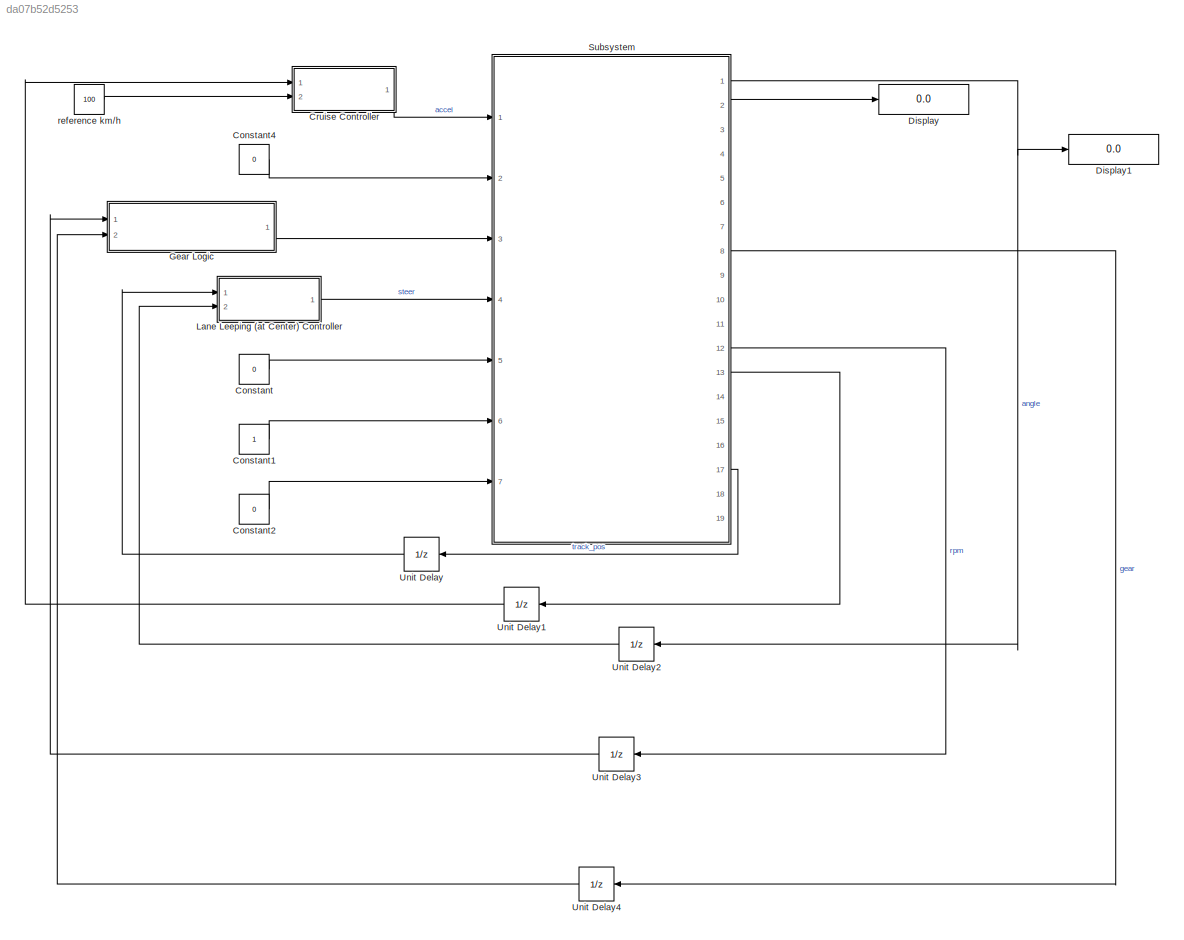
MODEL slx_da07b52d5253
KIND model
CONFIG AbsTol = auto
CONFIG EnableMultiTasking = on
CONFIG FixedStep = T
CONFIG MaxStep = auto
CONFIG MinStep = auto
CONFIG RelTol = 1e-3
CONFIG SampleTimeConstraint = Unconstrained
CONFIG Solver = ode1
CONFIG SolverName = ode1
CONFIG StartTime = 0.0
CONFIG StopTime = inf
BLOCK [Constant] Constant
  Value = 0
BLOCK [Constant] Constant1
BLOCK [Constant] Constant2
  Value = 0
BLOCK [Constant] Constant4
  Value = 0
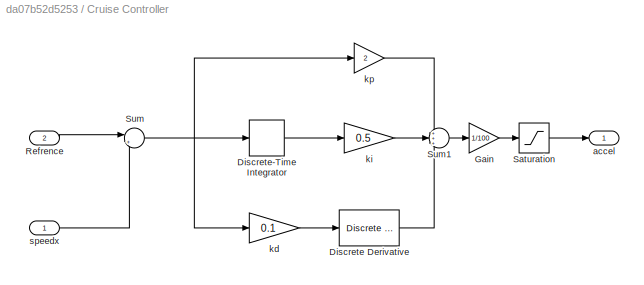
BLOCK [SubSystem] Cruise Controller
  Ports = [2, 1]
  Priority = 0
  RequestExecContextInheritance = off
BLOCK [Reference] Cruise Controller/Discrete Derivative  REF=simulink/Discrete/Discrete Derivative
  Ports = [1, 1]
  SourceBlock = simulink/Discrete/Discrete Derivative
  SourceProductBaseCode = SL
  SourceProductName = Simulink
  SourceType = Discrete Derivative
BLOCK [DiscreteIntegrator] Cruise Controller/Discrete-Time Integrator
  ICPrevOutput = DiscIntNeverNeededParam
  ICPrevScaledInput = DiscIntNeverNeededParam
  InitialConditionSetting = Auto
  Ports = [1, 1]
  SampleTime = -1
BLOCK [Gain] Cruise Controller/Gain
  Gain = 1/100
  OutDataTypeStr = Inherit: Inherit via internal rule
  ParamDataTypeStr = Inherit: Inherit via internal rule
  SaturateOnIntegerOverflow = off
BLOCK [Inport] Cruise Controller/Refrence 
  IconDisplay = Port number
  Port = 2
BLOCK [Saturate] Cruise Controller/Saturation
  InputPortMap = u0
  LowerLimit = -1
  Ports = [1, 1]
  UpperLimit = 1
BLOCK [Sum] Cruise Controller/Sum
  IconShape = round
  InputSameDT = off
  Inputs = |+-
  OutDataTypeStr = Inherit: Inherit via internal rule
  Ports = [2, 1]
  SaturateOnIntegerOverflow = off
BLOCK [Sum] Cruise Controller/Sum1
  IconShape = round
  InputSameDT = off
  Inputs = +++
  OutDataTypeStr = Inherit: Inherit via internal rule
  Ports = [3, 1]
  SaturateOnIntegerOverflow = off
BLOCK [Outport] Cruise Controller/accel
  IconDisplay = Port number
BLOCK [Gain] Cruise Controller/kd 
  Gain = 0.1
  OutDataTypeStr = Inherit: Inherit via internal rule
  ParamDataTypeStr = Inherit: Inherit via internal rule
  SaturateOnIntegerOverflow = off
BLOCK [Gain] Cruise Controller/ki 
  Gain = 0.5
  OutDataTypeStr = Inherit: Inherit via internal rule
  ParamDataTypeStr = Inherit: Inherit via internal rule
  SaturateOnIntegerOverflow = off
BLOCK [Gain] Cruise Controller/kp
  Gain = 2
  OutDataTypeStr = Inherit: Inherit via internal rule
  ParamDataTypeStr = Inherit: Inherit via internal rule
  SaturateOnIntegerOverflow = off
BLOCK [Inport] Cruise Controller/speedx 
  IconDisplay = Port number
BLOCK [Display] Display
  Decimation = 1
  Ports = [1]
BLOCK [Display] Display1
  Decimation = 1
  Ports = [1]
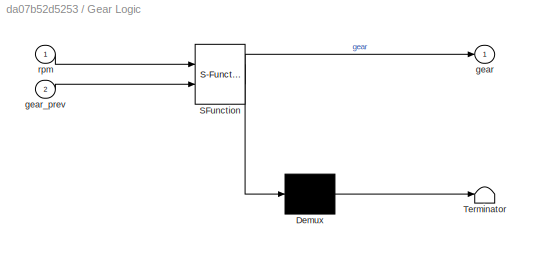
BLOCK [SubSystem] Gear Logic
  ErrorFcn = Stateflow.Translate.translate
  PermitHierarchicalResolution = ExplicitOnly
  Ports = [2, 1]
  RequestExecContextInheritance = off
  SFBlockType = MATLAB Function
  TreatAsAtomicUnit = on
BLOCK [Demux] Gear Logic/ Demux 
  Outputs = 1
  Ports = [1, 1]
BLOCK [S-Function] Gear Logic/ SFunction 
  EnableBusSupport = on
  FunctionName = sf_sfun
  PortCounts = [2 2]
  Ports = [2, 2]
  SFcnIsStateOwnerBlock = off
  SFunctionDeploymentMode = off
  Tag = Stateflow S-Function TestModel 2
BLOCK [Terminator] Gear Logic/ Terminator 
BLOCK [Outport] Gear Logic/gear
  IconDisplay = Port number
BLOCK [Inport] Gear Logic/gear_prev
  IconDisplay = Port number
  Port = 2
BLOCK [Inport] Gear Logic/rpm
  IconDisplay = Port number
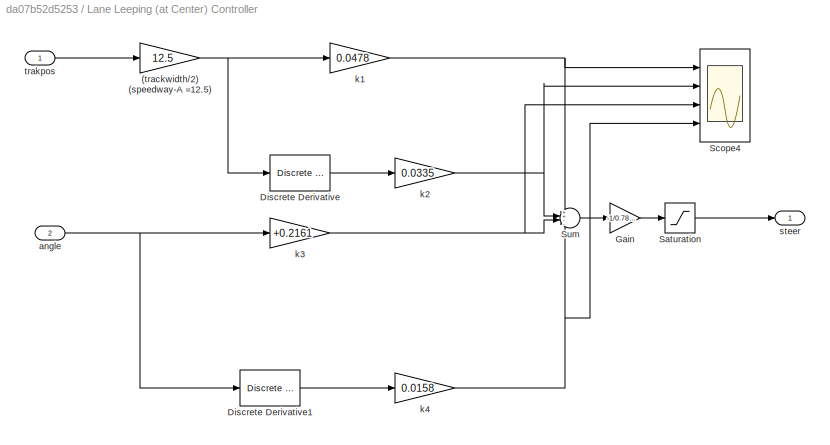
BLOCK [SubSystem] Lane Leeping (at Center) Controller
  Ports = [2, 1]
  Priority = 0
  RequestExecContextInheritance = off
BLOCK [Gain] Lane Leeping (at Center) Controller/(trackwidth//2) (speedway-A =12.5)
  Gain = 12.5
  OutDataTypeStr = Inherit: Inherit via internal rule
  ParamDataTypeStr = Inherit: Inherit via internal rule
  SaturateOnIntegerOverflow = off
BLOCK [Reference] Lane Leeping (at Center) Controller/Discrete Derivative  REF=simulink/Discrete/Discrete Derivative
  Ports = [1, 1]
  SourceBlock = simulink/Discrete/Discrete Derivative
  SourceProductBaseCode = SL
  SourceProductName = Simulink
  SourceType = Discrete Derivative
BLOCK [Reference] Lane Leeping (at Center) Controller/Discrete Derivative1  REF=simulink/Discrete/Discrete Derivative
  Ports = [1, 1]
  SourceBlock = simulink/Discrete/Discrete Derivative
  SourceProductBaseCode = SL
  SourceProductName = Simulink
  SourceType = Discrete Derivative
BLOCK [Gain] Lane Leeping (at Center) Controller/Gain
  Gain = -1/0.785398
  OutDataTypeStr = Inherit: Inherit via internal rule
  ParamDataTypeStr = Inherit: Inherit via internal rule
  SaturateOnIntegerOverflow = off
BLOCK [Saturate] Lane Leeping (at Center) Controller/Saturation
  InputPortMap = u0
  LowerLimit = -1
  Ports = [1, 1]
  UpperLimit = 1
BLOCK [Scope] Lane Leeping (at Center) Controller/Scope4
  Floating = off
  NumInputPorts = 4
  Ports = [4]
  ScopeSpecificationString = Simulink.scopes.TimeScopeBlockCfg('CurrentConfiguration', extmgr.ConfigurationSet(extmgr.Configuration('Core','General UI',true),extmgr.Configuration('Core','Source UI',true),extmgr.Configuration('Sources','WiredSimulink',true,'DataLoggingVariableName','ScopeData4'),extmgr.Configuration('Visuals','Time Domain',true,'SerializedDisplays',{struct('MinYLimReal','-0.02889','MaxYLimReal','0.22569','YLab...<+3430ch>
BLOCK [Sum] Lane Leeping (at Center) Controller/Sum
  IconShape = round
  InputSameDT = off
  Inputs = ++--
  OutDataTypeStr = Inherit: Inherit via internal rule
  Ports = [4, 1]
  SaturateOnIntegerOverflow = off
BLOCK [Inport] Lane Leeping (at Center) Controller/angle
  IconDisplay = Port number
  Port = 2
BLOCK [Gain] Lane Leeping (at Center) Controller/k1
  Gain = 0.0478
  OutDataTypeStr = Inherit: Inherit via internal rule
  ParamDataTypeStr = Inherit: Inherit via internal rule
  SaturateOnIntegerOverflow = off
BLOCK [Gain] Lane Leeping (at Center) Controller/k2
  Gain = 0.0335
  OutDataTypeStr = Inherit: Inherit via internal rule
  ParamDataTypeStr = Inherit: Inherit via internal rule
  SaturateOnIntegerOverflow = off
BLOCK [Gain] Lane Leeping (at Center) Controller/k3
  Gain = +0.2161
  OutDataTypeStr = Inherit: Inherit via internal rule
  ParamDataTypeStr = Inherit: Inherit via internal rule
  SaturateOnIntegerOverflow = off
BLOCK [Gain] Lane Leeping (at Center) Controller/k4
  Gain = 0.0158
  OutDataTypeStr = Inherit: Inherit via internal rule
  ParamDataTypeStr = Inherit: Inherit via internal rule
  SaturateOnIntegerOverflow = off
BLOCK [Outport] Lane Leeping (at Center) Controller/steer
  IconDisplay = Port number
BLOCK [Inport] Lane Leeping (at Center) Controller/trakpos
  IconDisplay = Port number
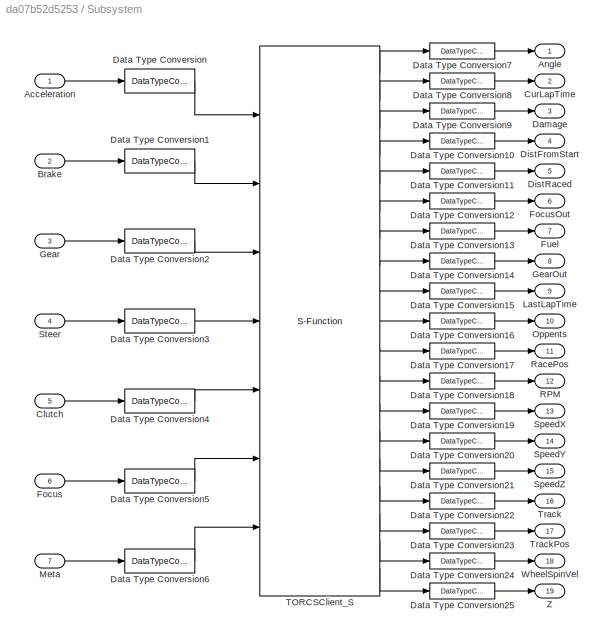
BLOCK [SubSystem] Subsystem
  Ports = [7, 19]
  Priority = 1
  RequestExecContextInheritance = off
BLOCK [Inport] Subsystem/Acceleration
  IconDisplay = Port number
BLOCK [Outport] Subsystem/Angle
  IconDisplay = Port number
BLOCK [Inport] Subsystem/Brake
  IconDisplay = Port number
  Port = 2
BLOCK [Inport] Subsystem/Clutch
  IconDisplay = Port number
  Port = 5
BLOCK [Outport] Subsystem/CurLapTime
  IconDisplay = Port number
  Port = 2
BLOCK [Outport] Subsystem/Damage
  IconDisplay = Port number
  Port = 3
BLOCK [DataTypeConversion] Subsystem/Data Type Conversion
  OutDataTypeStr = single
  RndMeth = Floor
  SaturateOnIntegerOverflow = off
BLOCK [DataTypeConversion] Subsystem/Data Type Conversion1
  OutDataTypeStr = single
  RndMeth = Floor
  SaturateOnIntegerOverflow = off
BLOCK [DataTypeConversion] Subsystem/Data Type Conversion10
  OutDataTypeStr = double
  RndMeth = Floor
  SaturateOnIntegerOverflow = off
BLOCK [DataTypeConversion] Subsystem/Data Type Conversion11
  OutDataTypeStr = double
  RndMeth = Floor
  SaturateOnIntegerOverflow = off
BLOCK [DataTypeConversion] Subsystem/Data Type Conversion12
  OutDataTypeStr = double
  RndMeth = Floor
  SaturateOnIntegerOverflow = off
BLOCK [DataTypeConversion] Subsystem/Data Type Conversion13
  OutDataTypeStr = double
  RndMeth = Floor
  SaturateOnIntegerOverflow = off
BLOCK [DataTypeConversion] Subsystem/Data Type Conversion14
  OutDataTypeStr = double
  RndMeth = Floor
  SaturateOnIntegerOverflow = off
BLOCK [DataTypeConversion] Subsystem/Data Type Conversion15
  OutDataTypeStr = double
  RndMeth = Floor
  SaturateOnIntegerOverflow = off
BLOCK [DataTypeConversion] Subsystem/Data Type Conversion16
  OutDataTypeStr = double
  RndMeth = Floor
  SaturateOnIntegerOverflow = off
BLOCK [DataTypeConversion] Subsystem/Data Type Conversion17
  OutDataTypeStr = double
  RndMeth = Floor
  SaturateOnIntegerOverflow = off
BLOCK [DataTypeConversion] Subsystem/Data Type Conversion18
  OutDataTypeStr = double
  RndMeth = Floor
  SaturateOnIntegerOverflow = off
BLOCK [DataTypeConversion] Subsystem/Data Type Conversion19
  OutDataTypeStr = double
  RndMeth = Floor
  SaturateOnIntegerOverflow = off
BLOCK [DataTypeConversion] Subsystem/Data Type Conversion2
  OutDataTypeStr = int32
  RndMeth = Floor
  SaturateOnIntegerOverflow = off
BLOCK [DataTypeConversion] Subsystem/Data Type Conversion20
  OutDataTypeStr = double
  RndMeth = Floor
  SaturateOnIntegerOverflow = off
BLOCK [DataTypeConversion] Subsystem/Data Type Conversion21
  OutDataTypeStr = double
  RndMeth = Floor
  SaturateOnIntegerOverflow = off
BLOCK [DataTypeConversion] Subsystem/Data Type Conversion22
  OutDataTypeStr = double
  RndMeth = Floor
  SaturateOnIntegerOverflow = off
BLOCK [DataTypeConversion] Subsystem/Data Type Conversion23
  OutDataTypeStr = double
  RndMeth = Floor
  SaturateOnIntegerOverflow = off
BLOCK [DataTypeConversion] Subsystem/Data Type Conversion24
  OutDataTypeStr = double
  RndMeth = Floor
  SaturateOnIntegerOverflow = off
BLOCK [DataTypeConversion] Subsystem/Data Type Conversion25
  OutDataTypeStr = double
  RndMeth = Floor
  SaturateOnIntegerOverflow = off
BLOCK [DataTypeConversion] Subsystem/Data Type Conversion3
  OutDataTypeStr = single
  RndMeth = Floor
  SaturateOnIntegerOverflow = off
BLOCK [DataTypeConversion] Subsystem/Data Type Conversion4
  OutDataTypeStr = single
  RndMeth = Floor
  SaturateOnIntegerOverflow = off
BLOCK [DataTypeConversion] Subsystem/Data Type Conversion5
  OutDataTypeStr = int32
  RndMeth = Floor
  SaturateOnIntegerOverflow = off
BLOCK [DataTypeConversion] Subsystem/Data Type Conversion6
  OutDataTypeStr = int32
  RndMeth = Floor
  SaturateOnIntegerOverflow = off
BLOCK [DataTypeConversion] Subsystem/Data Type Conversion7
  OutDataTypeStr = double
  RndMeth = Floor
  SaturateOnIntegerOverflow = off
BLOCK [DataTypeConversion] Subsystem/Data Type Conversion8
  OutDataTypeStr = double
  RndMeth = Floor
  SaturateOnIntegerOverflow = off
BLOCK [DataTypeConversion] Subsystem/Data Type Conversion9
  OutDataTypeStr = double
  RndMeth = Floor
  SaturateOnIntegerOverflow = off
BLOCK [Outport] Subsystem/DistFromStart
  IconDisplay = Port number
  Port = 4
BLOCK [Outport] Subsystem/DistRaced
  IconDisplay = Port number
  Port = 5
BLOCK [Inport] Subsystem/Focus
  IconDisplay = Port number
  Port = 6
BLOCK [Outport] Subsystem/FocusOut
  IconDisplay = Port number
  Port = 6
BLOCK [Outport] Subsystem/Fuel
  IconDisplay = Port number
  Port = 7
BLOCK [Inport] Subsystem/Gear
  IconDisplay = Port number
  Port = 3
BLOCK [Outport] Subsystem/GearOut
  IconDisplay = Port number
  Port = 8
BLOCK [Outport] Subsystem/LastLapTime
  IconDisplay = Port number
  Port = 9
BLOCK [Inport] Subsystem/Meta
  IconDisplay = Port number
  Port = 7
BLOCK [Outport] Subsystem/Oppents
  IconDisplay = Port number
  Port = 10
BLOCK [Outport] Subsystem/RPM
  IconDisplay = Port number
  Port = 12
BLOCK [Outport] Subsystem/RacePos
  IconDisplay = Port number
  Port = 11
BLOCK [Outport] Subsystem/SpeedX
  IconDisplay = Port number
  Port = 13
BLOCK [Outport] Subsystem/SpeedY
  IconDisplay = Port number
  Port = 14
BLOCK [Outport] Subsystem/SpeedZ
  IconDisplay = Port number
  Port = 15
BLOCK [Inport] Subsystem/Steer
  IconDisplay = Port number
  Port = 4
BLOCK [S-Function] Subsystem/TORCSClient_S
  EnableBusSupport = off
  FunctionName = TORCSClient_S
  Parameters = host,port,T
  Ports = [7, 19]
  SFcnIsStateOwnerBlock = off
  SFunctionDeploymentMode = off
BLOCK [Outport] Subsystem/Track
  IconDisplay = Port number
  Port = 16
BLOCK [Outport] Subsystem/TrackPos
  IconDisplay = Port number
  Port = 17
BLOCK [Outport] Subsystem/WheelSpinVel
  IconDisplay = Port number
  Port = 18
BLOCK [Outport] Subsystem/Z
  IconDisplay = Port number
  Port = 19
BLOCK [UnitDelay] Unit Delay
  InputProcessing = Elements as channels (sample based)
  SampleTime = -1
BLOCK [UnitDelay] Unit Delay1
  InputProcessing = Elements as channels (sample based)
  SampleTime = -1
BLOCK [UnitDelay] Unit Delay2
  InputProcessing = Elements as channels (sample based)
  SampleTime = -1
BLOCK [UnitDelay] Unit Delay3
  InputProcessing = Elements as channels (sample based)
  SampleTime = -1
BLOCK [UnitDelay] Unit Delay4
  InitialCondition = 1
  InputProcessing = Elements as channels (sample based)
  SampleTime = -1
BLOCK [Constant] reference km//h
  Value = 100
LINE Constant1:1 -> Subsystem:6
LINE Constant2:1 -> Subsystem:7
LINE Constant4:1 -> Subsystem:2
LINE Constant:1 -> Subsystem:5
LINE Cruise Controller/Discrete Derivative:1 -> Cruise Controller/Sum1:3
LINE Cruise Controller/Discrete-Time Integrator:1 -> Cruise Controller/ki :1
LINE Cruise Controller/Gain:1 -> Cruise Controller/Saturation:1
LINE Cruise Controller/Refrence :1 -> Cruise Controller/Sum:1
LINE Cruise Controller/Saturation:1 -> Cruise Controller/accel:1
LINE Cruise Controller/Sum1:1 -> Cruise Controller/Gain:1
NET Cruise Controller/Sum:1 -> Cruise Controller/Discrete-Time Integrator:1, Cruise Controller/kd :1, Cruise Controller/kp:1
LINE Cruise Controller/kd :1 -> Cruise Controller/Discrete Derivative:1
LINE Cruise Controller/ki :1 -> Cruise Controller/Sum1:2
LINE Cruise Controller/kp:1 -> Cruise Controller/Sum1:1
LINE Cruise Controller/speedx :1 -> Cruise Controller/Sum:2
LINE Cruise Controller:1 -> Subsystem:1
LINE Gear Logic:1 -> Subsystem:3
NET Lane Leeping (at Center) Controller/(trackwidth//2) (speedway-A =12.5):1 -> Lane Leeping (at Center) Controller/Discrete Derivative:1, Lane Leeping (at Center) Controller/k1:1
LINE Lane Leeping (at Center) Controller/Discrete Derivative1:1 -> Lane Leeping (at Center) Controller/k4:1
LINE Lane Leeping (at Center) Controller/Discrete Derivative:1 -> Lane Leeping (at Center) Controller/k2:1
LINE Lane Leeping (at Center) Controller/Gain:1 -> Lane Leeping (at Center) Controller/Saturation:1
LINE Lane Leeping (at Center) Controller/Saturation:1 -> Lane Leeping (at Center) Controller/steer:1
LINE Lane Leeping (at Center) Controller/Sum:1 -> Lane Leeping (at Center) Controller/Gain:1
NET Lane Leeping (at Center) Controller/angle:1 -> Lane Leeping (at Center) Controller/Discrete Derivative1:1, Lane Leeping (at Center) Controller/k3:1
NET Lane Leeping (at Center) Controller/k1:1 -> Lane Leeping (at Center) Controller/Scope4:1, Lane Leeping (at Center) Controller/Sum:1
NET Lane Leeping (at Center) Controller/k2:1 -> Lane Leeping (at Center) Controller/Scope4:2, Lane Leeping (at Center) Controller/Sum:2
NET Lane Leeping (at Center) Controller/k3:1 -> Lane Leeping (at Center) Controller/Scope4:3, Lane Leeping (at Center) Controller/Sum:3
NET Lane Leeping (at Center) Controller/k4:1 -> Lane Leeping (at Center) Controller/Scope4:4, Lane Leeping (at Center) Controller/Sum:4
LINE Lane Leeping (at Center) Controller/trakpos:1 -> Lane Leeping (at Center) Controller/(trackwidth//2) (speedway-A =12.5):1
LINE Lane Leeping (at Center) Controller:1 -> Subsystem:4
LINE Subsystem/Acceleration:1 -> Subsystem/Data Type Conversion:1
LINE Subsystem/Brake:1 -> Subsystem/Data Type Conversion1:1
LINE Subsystem/Clutch:1 -> Subsystem/Data Type Conversion4:1
LINE Subsystem/Data Type Conversion10:1 -> Subsystem/DistFromStart:1
LINE Subsystem/Data Type Conversion11:1 -> Subsystem/DistRaced:1
LINE Subsystem/Data Type Conversion12:1 -> Subsystem/FocusOut:1
LINE Subsystem/Data Type Conversion13:1 -> Subsystem/Fuel:1
LINE Subsystem/Data Type Conversion14:1 -> Subsystem/GearOut:1
LINE Subsystem/Data Type Conversion15:1 -> Subsystem/LastLapTime:1
LINE Subsystem/Data Type Conversion16:1 -> Subsystem/Oppents:1
LINE Subsystem/Data Type Conversion17:1 -> Subsystem/RacePos:1
LINE Subsystem/Data Type Conversion18:1 -> Subsystem/RPM:1
LINE Subsystem/Data Type Conversion19:1 -> Subsystem/SpeedX:1
LINE Subsystem/Data Type Conversion1:1 -> Subsystem/TORCSClient_S:2
LINE Subsystem/Data Type Conversion20:1 -> Subsystem/SpeedY:1
LINE Subsystem/Data Type Conversion21:1 -> Subsystem/SpeedZ:1
LINE Subsystem/Data Type Conversion22:1 -> Subsystem/Track:1
LINE Subsystem/Data Type Conversion23:1 -> Subsystem/TrackPos:1
LINE Subsystem/Data Type Conversion24:1 -> Subsystem/WheelSpinVel:1
LINE Subsystem/Data Type Conversion25:1 -> Subsystem/Z:1
LINE Subsystem/Data Type Conversion2:1 -> Subsystem/TORCSClient_S:3
LINE Subsystem/Data Type Conversion3:1 -> Subsystem/TORCSClient_S:4
LINE Subsystem/Data Type Conversion4:1 -> Subsystem/TORCSClient_S:5
LINE Subsystem/Data Type Conversion5:1 -> Subsystem/TORCSClient_S:6
LINE Subsystem/Data Type Conversion6:1 -> Subsystem/TORCSClient_S:7
LINE Subsystem/Data Type Conversion7:1 -> Subsystem/Angle:1
LINE Subsystem/Data Type Conversion8:1 -> Subsystem/CurLapTime:1
LINE Subsystem/Data Type Conversion9:1 -> Subsystem/Damage:1
LINE Subsystem/Data Type Conversion:1 -> Subsystem/TORCSClient_S:1
LINE Subsystem/Focus:1 -> Subsystem/Data Type Conversion5:1
LINE Subsystem/Gear:1 -> Subsystem/Data Type Conversion2:1
LINE Subsystem/Meta:1 -> Subsystem/Data Type Conversion6:1
LINE Subsystem/Steer:1 -> Subsystem/Data Type Conversion3:1
LINE Subsystem/TORCSClient_S:1 -> Subsystem/Data Type Conversion7:1
LINE Subsystem/TORCSClient_S:10 -> Subsystem/Data Type Conversion16:1
LINE Subsystem/TORCSClient_S:11 -> Subsystem/Data Type Conversion17:1
LINE Subsystem/TORCSClient_S:12 -> Subsystem/Data Type Conversion18:1
LINE Subsystem/TORCSClient_S:13 -> Subsystem/Data Type Conversion19:1
LINE Subsystem/TORCSClient_S:14 -> Subsystem/Data Type Conversion20:1
LINE Subsystem/TORCSClient_S:15 -> Subsystem/Data Type Conversion21:1
LINE Subsystem/TORCSClient_S:16 -> Subsystem/Data Type Conversion22:1
LINE Subsystem/TORCSClient_S:17 -> Subsystem/Data Type Conversion23:1
LINE Subsystem/TORCSClient_S:18 -> Subsystem/Data Type Conversion24:1
LINE Subsystem/TORCSClient_S:19 -> Subsystem/Data Type Conversion25:1
LINE Subsystem/TORCSClient_S:2 -> Subsystem/Data Type Conversion8:1
LINE Subsystem/TORCSClient_S:3 -> Subsystem/Data Type Conversion9:1
LINE Subsystem/TORCSClient_S:4 -> Subsystem/Data Type Conversion10:1
LINE Subsystem/TORCSClient_S:5 -> Subsystem/Data Type Conversion11:1
LINE Subsystem/TORCSClient_S:6 -> Subsystem/Data Type Conversion12:1
LINE Subsystem/TORCSClient_S:7 -> Subsystem/Data Type Conversion13:1
LINE Subsystem/TORCSClient_S:8 -> Subsystem/Data Type Conversion14:1
LINE Subsystem/TORCSClient_S:9 -> Subsystem/Data Type Conversion15:1
NET Subsystem:1 -> Display1:1, Unit Delay2:1
LINE Subsystem:12 -> Unit Delay3:1
LINE Subsystem:13 -> Unit Delay1:1
LINE Subsystem:17 -> Unit Delay:1
LINE Subsystem:2 -> Display:1
LINE Subsystem:8 -> Unit Delay4:1
LINE Unit Delay1:1 -> Cruise Controller:1
LINE Unit Delay2:1 -> Lane Leeping (at Center) Controller:2
LINE Unit Delay3:1 -> Gear Logic:1
LINE Unit Delay4:1 -> Gear Logic:2
LINE Unit Delay:1 -> Lane Leeping (at Center) Controller:1
LINE reference km//h:1 -> Cruise Controller:2
note: NET lines group one-source signal fan-out (src -> all destinations, sorted); 1:1 wires keep LINE
CHART Gear Logic states=1 transitions=1
  STATE_LABEL 'eML_blk_kernel()'
  STATE_LABEL 'SCRIPT:\nfunction gear = fcn(rpm, gear_prev)\n\ngearUp=[5000,6000,6000,6500,7000,0];\ngearDown=[0,2500,3000,3000,3500,3500];\n\nif(gear_prev < 1)\n    gear=1;\n    return;\nend;\n\nif(gear_prev<6 && rpm>=gearUp(gear_prev))\n    gear=gear_prev+1;\n    return;\nelse\n    if(gear_prev>1 && rpm<=gearDown(gear_prev))\n        gear=gear_prev-1;\n        return;\n    else\n        gear=gear_prev;\n        return;\n    end;\ne...<+5ch>'
